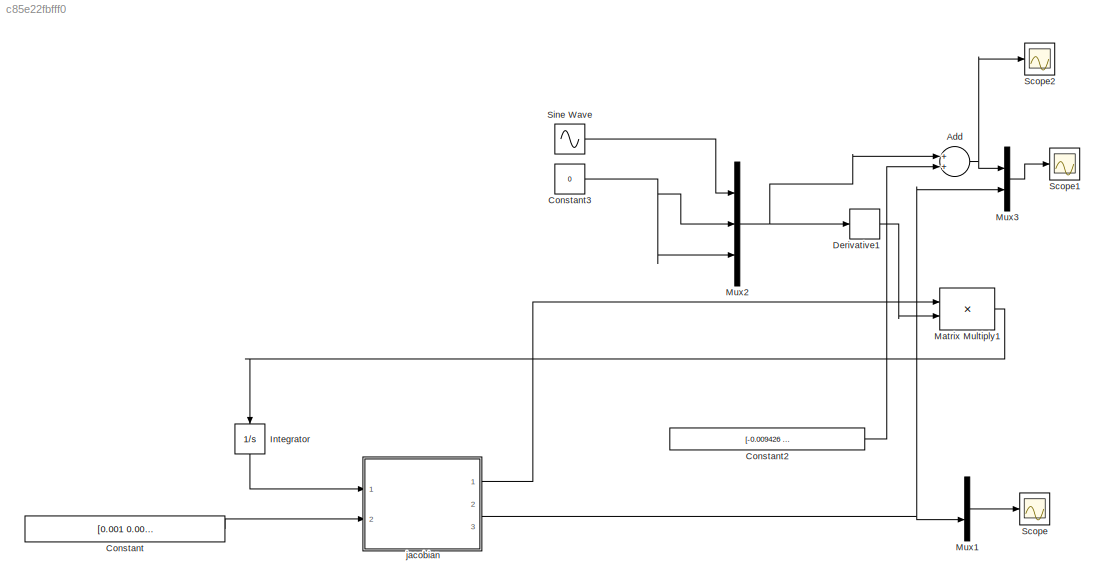
MODEL slx_c85e22fbfff0
KIND model
CONFIG AbsTol = auto
CONFIG EnableMultiTasking = off
CONFIG FixedStep = 0.05
CONFIG MaxStep = auto
CONFIG MinStep = auto
CONFIG RelTol = 1e-3
CONFIG SampleTimeConstraint = Unconstrained
CONFIG Solver = FixedStepAuto
CONFIG SolverName = FixedStepAuto
CONFIG StartTime = 0.0
CONFIG StopTime = 10
BLOCK [Sum] Add
  InputSameDT = off
  OutDataTypeStr = Inherit: Inherit via internal rule
  Ports = [2, 1]
  SaturateOnIntegerOverflow = off
BLOCK [Constant] Constant
  Value = [0.001 0.001 0.001 pi/180 pi/180 pi/180]
BLOCK [Constant] Constant2
  Value = [-0.009426 -0.2116 0.1959]
BLOCK [Constant] Constant3
  Value = 0
BLOCK [Derivative] Derivative1
BLOCK [Integrator] Integrator
  InitialCondition = [0 0 0 0 0 0]'
  Ports = [1, 1]
BLOCK [Product] Matrix Multiply1
  InputSameDT = off
  Multiplication = Matrix(*)
  OutDataTypeStr = Inherit: Inherit via internal rule
  Ports = [2, 1]
  RndMeth = Floor
  SaturateOnIntegerOverflow = off
BLOCK [Mux] Mux1
  DisplayOption = bar
  Inputs = 2
  Ports = [2, 1]
BLOCK [Mux] Mux2
  DisplayOption = bar
  Inputs = 3
  Ports = [3, 1]
BLOCK [Mux] Mux3
  DisplayOption = bar
  Inputs = 2
  Ports = [2, 1]
BLOCK [Scope] Scope
  NumInputPorts = 1
  Ports = [1]
  ScopeSpecificationString = Simulink.scopes.TimeScopeBlockCfg('CurrentConfiguration', extmgr.ConfigurationSet(extmgr.Configuration('Core','General UI',true),extmgr.Configuration('Core','Source UI',true),extmgr.Configuration('Sources','WiredSimulink',true),extmgr.Configuration('Visuals','Time Domain',true,'SerializedDisplays',{struct('MinYLimReal','-0.26306','MaxYLimReal','0.24783','YLabelReal','','MinYLimMag','0.00000','MaxY...<+1440ch>
BLOCK [Scope] Scope1
  NumInputPorts = 1
  Ports = [1]
  ScopeSpecificationString = Simulink.scopes.TimeScopeBlockCfg('CurrentConfiguration', extmgr.ConfigurationSet(extmgr.Configuration('Core','General UI',true),extmgr.Configuration('Core','Source UI',true),extmgr.Configuration('Sources','WiredSimulink',true,'DataLoggingVariableName','ScopeData1'),extmgr.Configuration('Visuals','Time Domain',true,'SerializedDisplays',{struct('MinYLimReal','-0.26306','MaxYLimReal','0.24783','YLab...<+1491ch>
BLOCK [Scope] Scope2
  NumInputPorts = 1
  Ports = [1]
  ScopeSpecificationString = Simulink.scopes.TimeScopeBlockCfg('CurrentConfiguration', extmgr.ConfigurationSet(extmgr.Configuration('Core','General UI',true),extmgr.Configuration('Core','Source UI',true),extmgr.Configuration('Sources','WiredSimulink',true,'DataLoggingVariableName','ScopeData2'),extmgr.Configuration('Visuals','Time Domain',true,'SerializedDisplays',{struct('MinYLimReal','-0.26254','MaxYLimReal','0.24684','YLab...<+1434ch>
BLOCK [Sin] Sine Wave
  Amplitude = 0.05
  Ports = [0, 1]
  SampleTime = 0
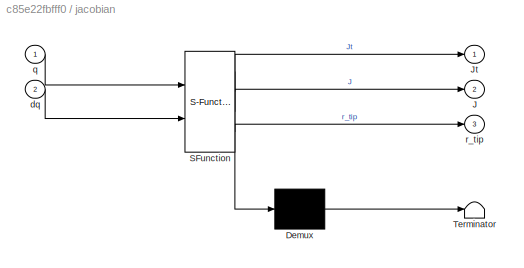
BLOCK [SubSystem] jacobian
  ErrorFcn = Stateflow.Translate.translate
  PermitHierarchicalResolution = ExplicitOnly
  Ports = [2, 3]
  RequestExecContextInheritance = off
  SFBlockType = MATLAB Function
  TreatAsAtomicUnit = on
  Variant = off
BLOCK [Demux] jacobian/ Demux 
  Outputs = 1
  Ports = [1, 1]
BLOCK [S-Function] jacobian/ SFunction 
  EnableBusSupport = on
  FunctionName = sf_sfun
  PortCounts = [2 4]
  Ports = [2, 4]
  SFcnIsStateOwnerBlock = off
  SFunctionDeploymentMode = off
  Tag = Stateflow S-Function CTR_control 1
BLOCK [Terminator] jacobian/ Terminator 
BLOCK [Outport] jacobian/J
  IconDisplay = Port number
  Port = 2
BLOCK [Outport] jacobian/Jt
  IconDisplay = Port number
BLOCK [Inport] jacobian/dq
  IconDisplay = Port number
  Port = 2
BLOCK [Inport] jacobian/q
  IconDisplay = Port number
BLOCK [Outport] jacobian/r_tip
  IconDisplay = Port number
  Port = 3
NET Add:1 -> Mux3:1, Scope2:1
LINE Constant2:1 -> Add:2
NET Constant3:1 -> Mux2:2, Mux2:3
LINE Constant:1 -> jacobian:2
LINE Derivative1:1 -> Matrix Multiply1:2
LINE Integrator:1 -> jacobian:1
LINE Matrix Multiply1:1 -> Integrator:1
LINE Mux1:1 -> Scope:1
NET Mux2:1 -> Add:1, Derivative1:1
LINE Mux3:1 -> Scope1:1
LINE Sine Wave:1 -> Mux2:1
LINE jacobian:1 -> Matrix Multiply1:1
NET jacobian:3 -> Mux1:2, Mux3:2
note: NET lines group one-source signal fan-out (src -> all destinations, sorted); 1:1 wires keep LINE
CHART jacobian states=1 transitions=1
  STATE_LABEL 'eML_blk_kernel()'
  STATE_LABEL 'SCRIPT:\n% this is a code for modelling of concentric tube robot in free space based on " Design\n% and Control of Concentric-Tube Robots " by Dupont\n\nfunction [Jt,J, r_tip] = jacobian(q,dq)\n\nJ=zeros(3,6);\n%Jt=zeros(6,6);\nr_tip=moving_CTR(q);\n\nfor i=1:6\nQ=q;\nQ(i)=Q(i)+dq(i);\nJ(:,i)= (moving_CTR(Q)- r_tip)/dq(i);\nend\n\nJt=J\'*(J*J\')^-1;\nend\n%% Initializing parameters \nfunction r_tip  = moving_CTR(q)\n% ...<+3608ch>'
